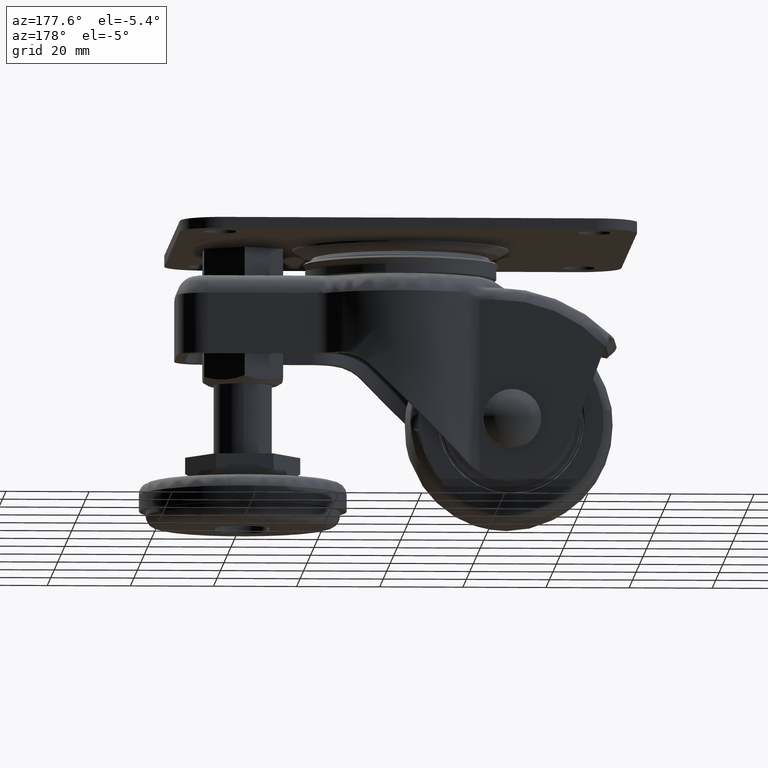
[diagram: clean part render]
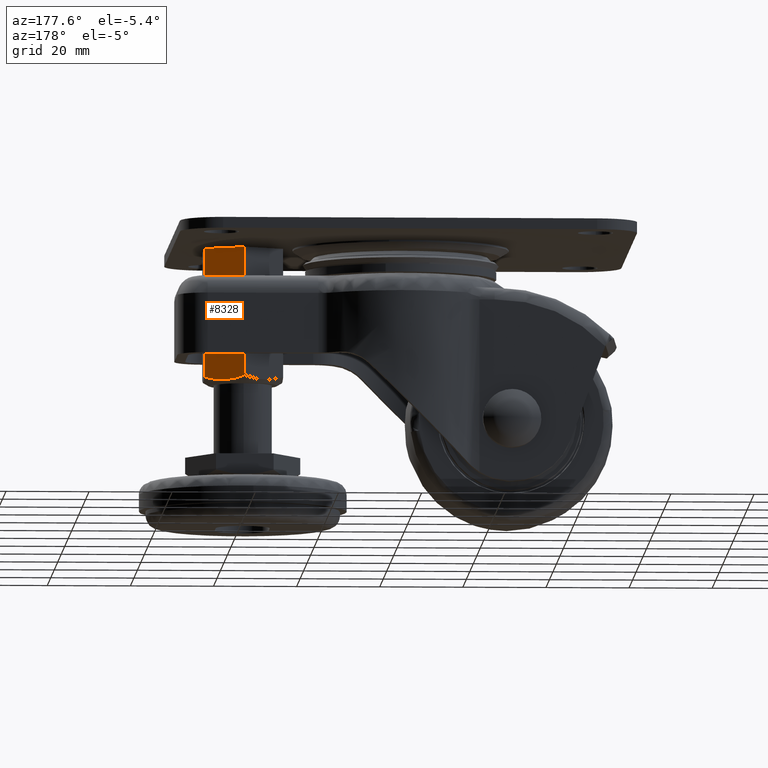
[diagram: same view with one face highlighted and labeled with its STEP entity id]
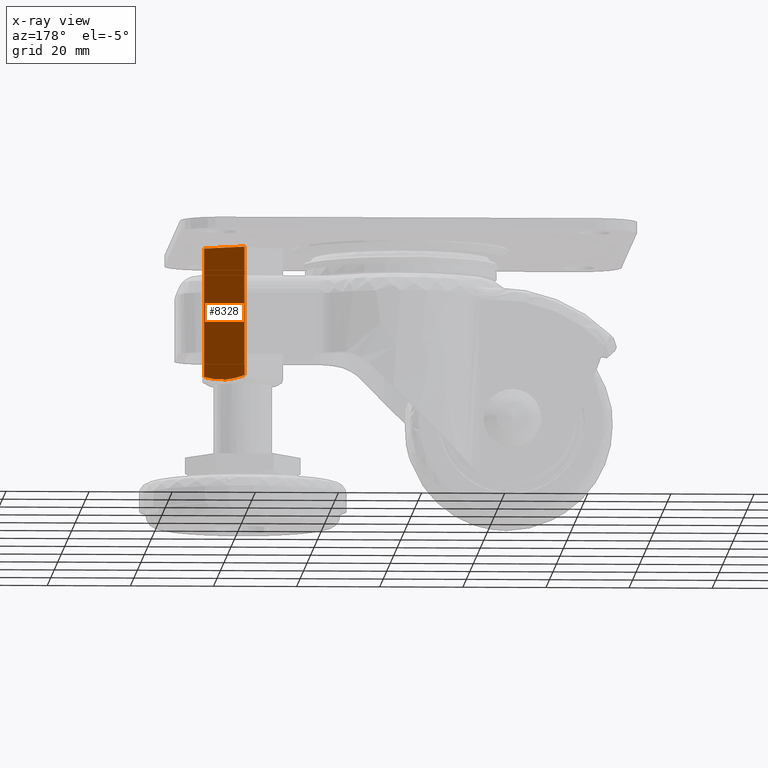
[diagram: x-ray of the same camera — body ghosted, the highlighted face saturated]
A machine part, auxiliary view. The second image highlights one B-rep face of the part: STEP entity #8328.
The next image is the same camera in x-ray: the body ghosted, the highlighted face saturated — about 0% of this face is hidden behind the body in this view.
In plain terms, the highlighted face is a freeform B-spline surface patch.
Its self-contained STEP definition (entity closure, byte-faithful):
#8128=CARTESIAN_POINT('',(47.499999900750900,5.484827500000000,-3.000007000000140));
#8129=VERTEX_POINT('',#8128);
#8135=CARTESIAN_POINT('',(38.0,10.969654999999999,-3.000007000000140));
#8136=VERTEX_POINT('',#8135);
#8137=CARTESIAN_POINT('',(47.499999900750900,5.484827500000000,-3.000007000000140));
#8138=CARTESIAN_POINT('',(38.0,10.969654999999999,-3.000007000000140));
#8139=QUASI_UNIFORM_CURVE('',1,(#8137,#8138),.UNSPECIFIED.,.F.,.U.);
#8140=EDGE_CURVE('',#8129,#8136,#8139,.T.);
#8253=CARTESIAN_POINT('',(38.0,10.969654999999999,-34.016765538870636));
#8254=VERTEX_POINT('',#8253);
#8276=CARTESIAN_POINT('',(38.0,10.969654999999999,-3.000007000000140));
#8277=CARTESIAN_POINT('',(38.0,10.969654999999999,-34.016765538870636));
#8278=QUASI_UNIFORM_CURVE('',1,(#8276,#8277),.UNSPECIFIED.,.F.,.U.);
#8279=EDGE_CURVE('',#8136,#8254,#8278,.T.);
#8284=CARTESIAN_POINT('',(37.525475023370312,11.243622122994299,-36.456937580404038));
#8285=CARTESIAN_POINT('',(47.974525132190429,5.210860229891121,-36.456937580404038));
#8286=CARTESIAN_POINT('',(37.525475023370312,11.243622122994299,-1.408336427006171));
#8287=CARTESIAN_POINT('',(47.974525132190429,5.210860229891121,-1.408336427006171));
#8288=B_SPLINE_SURFACE_WITH_KNOTS('',1,1,((#8284,#8286),(#8285,#8287)),.UNSPECIFIED.,.F.,.F.,.U.,(2,2),(2,2),(0.0,12.065523786206370),(0.0,35.048601153397868),.UNSPECIFIED.);
#8289=CARTESIAN_POINT('',(42.390792002048727,8.434632958855175,-34.860038727343799));
#8290=VERTEX_POINT('',#8289);
#8291=CARTESIAN_POINT('',(47.499999900750900,5.484827499999991,-34.016765538870636));
#8292=VERTEX_POINT('',#8291);
#8293=CARTESIAN_POINT('',(42.390792002048727,8.434632958855175,-34.860038727343799));
#8294=CARTESIAN_POINT('',(42.507297729326680,8.367368281206652,-34.863431098107789));
#8295=CARTESIAN_POINT('',(42.624007145950152,8.299986003233373,-34.865186138881199));
#8296=CARTESIAN_POINT('',(42.942842345324728,8.115906237519850,-34.865420378652608));
#8297=CARTESIAN_POINT('',(43.145783842123549,7.998737796371199,-34.860575348844137));
#8298=CARTESIAN_POINT('',(43.549825461469503,7.765464032341521,-34.841054286372177));
#8299=CARTESIAN_POINT('',(43.751144375735763,7.649232389882275,-34.826400820054481));
#8300=CARTESIAN_POINT('',(44.353086562306594,7.301700567238800,-34.768396885914903));
#8301=CARTESIAN_POINT('',(44.751690568483227,7.071566211051224,-34.710970050044480));
#8302=CARTESIAN_POINT('',(45.940405986758719,6.385260367097475,-34.489218917589049));
#8303=CARTESIAN_POINT('',(46.723448450499049,5.933170139108554,-34.275616758401448));
#8304=CARTESIAN_POINT('',(47.499999900750900,5.484827499999991,-34.016765538870636));
#8305=B_SPLINE_CURVE_WITH_KNOTS('',3,(#8293,#8294,#8295,#8296,#8297,#8298,#8299,#8300,#8301,#8302,#8303,#8304),.UNSPECIFIED.,.F.,.U.,(4,2,2,2,2,4),(0.463810499380101,0.500000000000002,0.562500000000002,0.625000000000002,0.750000000000002,1.0),.UNSPECIFIED.);
#8306=EDGE_CURVE('',#8290,#8292,#8305,.T.);
#8307=ORIENTED_EDGE('',*,*,#8306,.F.);
#8308=CARTESIAN_POINT('',(38.0,10.969654999999999,-34.016765538870636));
#8309=CARTESIAN_POINT('',(38.775585027649733,10.521871298479001,-34.275294596860213));
#8310=CARTESIAN_POINT('',(39.556824704852282,10.070822882942259,-34.488369525722277));
#8311=CARTESIAN_POINT('',(40.740904189889562,9.387195055869654,-34.709753363154448));
#8312=CARTESIAN_POINT('',(41.137638897268729,9.158140426345270,-34.767137288991727));
#8313=CARTESIAN_POINT('',(41.820198867843573,8.764064688908739,-34.833527151380899));
#8314=CARTESIAN_POINT('',(42.104882094032050,8.599702936486107,-34.851713196639679));
#8315=CARTESIAN_POINT('',(42.390792002048727,8.434632958855175,-34.860038727343799));
#8316=B_SPLINE_CURVE_WITH_KNOTS('',3,(#8308,#8309,#8310,#8311,#8312,#8313,#8314,#8315),.UNSPECIFIED.,.F.,.U.,(4,2,2,4),(0.0,0.250000000000002,0.375000000000002,0.463810499380101),.UNSPECIFIED.);
#8317=EDGE_CURVE('',#8254,#8290,#8316,.T.);
#8318=ORIENTED_EDGE('',*,*,#8317,.F.);
#8319=ORIENTED_EDGE('',*,*,#8279,.F.);
#8320=ORIENTED_EDGE('',*,*,#8140,.F.);
#8321=CARTESIAN_POINT('',(47.499999900750900,5.484827500000000,-3.000007000000140));
#8322=CARTESIAN_POINT('',(47.499999900750900,5.484827499999991,-34.016765538870636));
#8323=QUASI_UNIFORM_CURVE('',1,(#8321,#8322),.UNSPECIFIED.,.F.,.U.);
#8324=EDGE_CURVE('',#8129,#8292,#8323,.T.);
#8325=ORIENTED_EDGE('',*,*,#8324,.T.);
#8326=EDGE_LOOP('',(#8307,#8318,#8319,#8320,#8325));
#8327=FACE_OUTER_BOUND('',#8326,.T.);
#8328=ADVANCED_FACE('',(#8327),#8288,.F.);